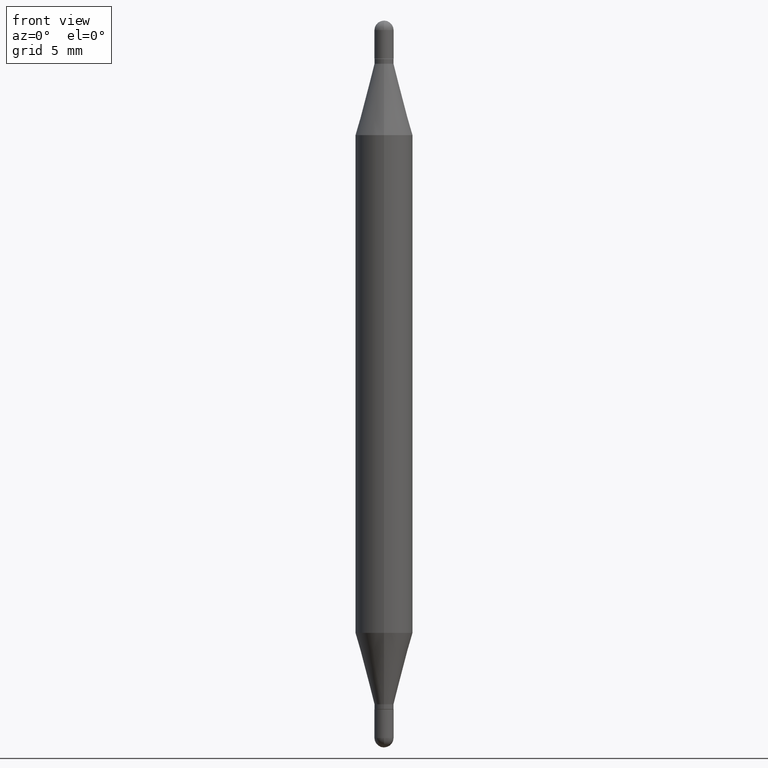
[diagram: clean part render]
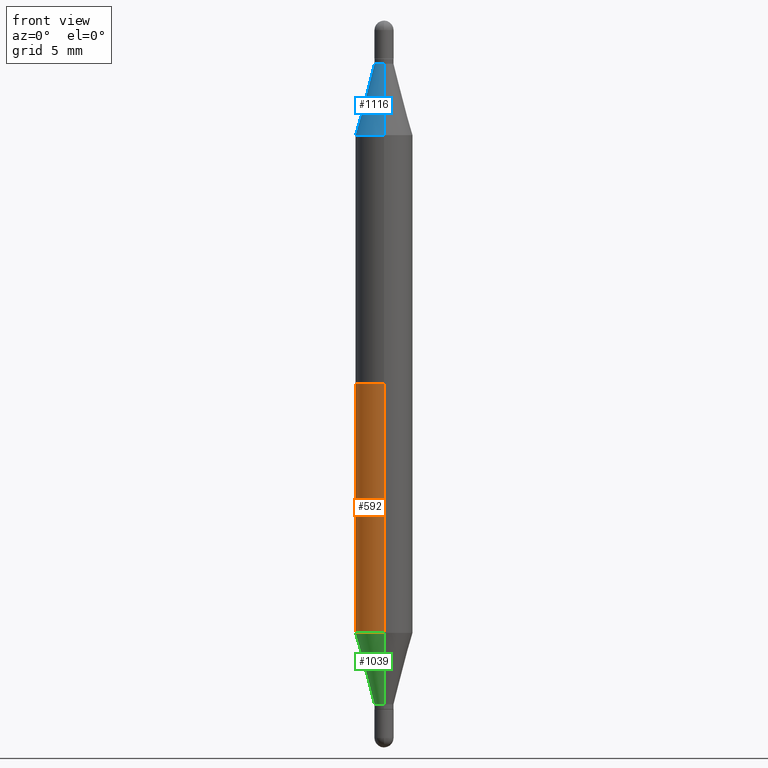
[diagram: same view with three faces highlighted in distinct colors, each labeled with its STEP entity id]
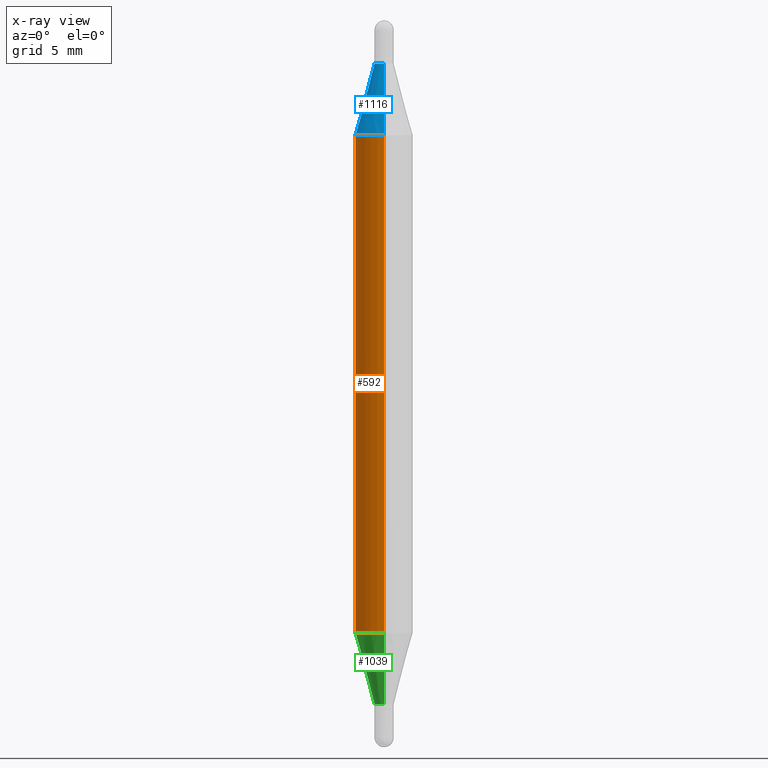
[diagram: x-ray of the same camera — body ghosted, the three highlighted faces saturated]
A machine part, front view with three faces highlighted in distinct colors.
The next image is the same camera in x-ray (body ghosted, the three faces saturated) — at least one of them is partly hidden behind the body in this view.
Their STEP definitions:

[orange] entity #592 — the highlighted cylindrical surface (edge-blend (fillet) strip) has radius 1.4999 mm, axis along (-0, -0, -1).
#17 = VECTOR ( 'NONE', #751, 39.37007874015748143 ) ;
#41 = VERTEX_POINT ( 'NONE', #969 ) ;
#54 = VERTEX_POINT ( 'NONE', #279 ) ;
#78 = AXIS2_PLACEMENT_3D ( 'NONE', #487, #327, #235 ) ;
#194 = CARTESIAN_POINT ( 'NONE',  ( -4.123439461173430699E-16, -0.05905000000000081711, -0.2358561992778356042 ) ) ;
#197 = DIRECTION ( 'NONE',  ( -2.452517539544845457E-29, -3.489708654337918810E-15, -1.000000000000000000 ) ) ;
#233 = CARTESIAN_POINT ( 'NONE',  ( 3.090770025373766700E-29, -4.387396575570313386E-15, -1.260243800722164131 ) ) ;
#235 = DIRECTION ( 'NONE',  ( -6.982962677686265922E-15, -1.000000000000000000, 4.626330217890367758E-15 ) ) ;
#273 = DIRECTION ( 'NONE',  ( 2.452517539544845457E-29, 3.489708654337919205E-15, 1.000000000000000000 ) ) ;
#279 = CARTESIAN_POINT ( 'NONE',  ( -4.123439461173431192E-16, -0.05905000000000439758, -1.260243800722163909 ) ) ;
#282 = LINE ( 'NONE', #619, #1031 ) ;
#327 = DIRECTION ( 'NONE',  ( -2.452517539544845457E-29, -3.489708654337919205E-15, -1.000000000000000000 ) ) ;
#342 = CARTESIAN_POINT ( 'NONE',  ( 4.051124067684273079E-16, 0.05904999999999561988, -1.260243800722164353 ) ) ;
#357 = ORIENTED_EDGE ( 'NONE', *, *, #834, .T. ) ;
#419 = CYLINDRICAL_SURFACE ( 'NONE', #78, 0.05905000000000001914 ) ;
#456 = AXIS2_PLACEMENT_3D ( 'NONE', #233, #568, #848 ) ;
#487 = CARTESIAN_POINT ( 'NONE',  ( 0.000000000000000000, -5.214728217544379106E-15, -1.496099999999999985 ) ) ;
#490 = EDGE_CURVE ( 'NONE', #656, #54, #282, .T. ) ;
#505 = FACE_OUTER_BOUND ( 'NONE', #524, .T. ) ;
#523 = EDGE_CURVE ( 'NONE', #41, #916, #758, .T. ) ;
#524 = EDGE_LOOP ( 'NONE', ( #1053, #621, #357, #526 ) ) ;
#526 = ORIENTED_EDGE ( 'NONE', *, *, #490, .F. ) ;
#568 = DIRECTION ( 'NONE',  ( -2.452517539544845457E-29, 3.481387151483054632E-15, 1.000000000000000000 ) ) ;
#592 = ADVANCED_FACE ( 'NONE', ( #505 ), #419, .T. ) ;
#619 = CARTESIAN_POINT ( 'NONE',  ( -4.123439461173741313E-16, -0.05905000000000523025, -1.496099999999999541 ) ) ;
#620 = AXIS2_PLACEMENT_3D ( 'NONE', #953, #273, #889 ) ;
#621 = ORIENTED_EDGE ( 'NONE', *, *, #523, .T. ) ;
#656 = VERTEX_POINT ( 'NONE', #194 ) ;
#708 = EDGE_CURVE ( 'NONE', #41, #656, #1118, .T. ) ;
#751 = DIRECTION ( 'NONE',  ( -2.452517539544845457E-29, -3.489708654337918810E-15, -1.000000000000000000 ) ) ;
#758 = LINE ( 'NONE', #1020, #17 ) ;
#834 = EDGE_CURVE ( 'NONE', #916, #54, #1051, .T. ) ;
#848 = DIRECTION ( 'NONE',  ( -6.982962677686265922E-15, -1.000000000000000000, 4.626330217890369336E-15 ) ) ;
#889 = DIRECTION ( 'NONE',  ( -6.982962677686265922E-15, -1.000000000000000000, 3.469747663417777002E-15 ) ) ;
#916 = VERTEX_POINT ( 'NONE', #342 ) ;
#953 = CARTESIAN_POINT ( 'NONE',  ( 3.090770025373766700E-29, -8.168445195885310899E-16, -0.2358561992778358263 ) ) ;
#969 = CARTESIAN_POINT ( 'NONE',  ( 4.051124067684398803E-16, 0.05904999999999917953, -0.2358561992778360206 ) ) ;
#1020 = CARTESIAN_POINT ( 'NONE',  ( 4.051124067684090161E-16, 0.05904999999999480109, -1.496100000000000207 ) ) ;
#1031 = VECTOR ( 'NONE', #197, 39.37007874015748143 ) ;
#1051 = CIRCLE ( 'NONE', #456, 0.05905000000000000526 ) ;
#1053 = ORIENTED_EDGE ( 'NONE', *, *, #708, .F. ) ;
#1118 = CIRCLE ( 'NONE', #620, 0.05905000000000000526 ) ;

[blue] entity #1116 — the highlighted conical surface has half-angle 15 deg.
#82 = VECTOR ( 'NONE', #258, 39.37007874015748143 ) ;
#124 = AXIS2_PLACEMENT_3D ( 'NONE', #675, #411, #151 ) ;
#151 = DIRECTION ( 'NONE',  ( -6.982962677686265922E-15, -1.000000000000000000, 3.466812174700886453E-15 ) ) ;
#177 = EDGE_CURVE ( 'NONE', #265, #215, #391, .T. ) ;
#186 = CARTESIAN_POINT ( 'NONE',  ( 4.051124067684398803E-16, 0.05904999999999917953, -0.2358561992778360206 ) ) ;
#204 = CARTESIAN_POINT ( 'NONE',  ( -1.375643647503831486E-16, -0.01970000000000004733, -0.08899999999999999578 ) ) ;
#215 = VERTEX_POINT ( 'NONE', #204 ) ;
#229 = CARTESIAN_POINT ( 'NONE',  ( 3.090770025373766700E-29, -8.168445195885310899E-16, -0.2358561992778358263 ) ) ;
#258 = DIRECTION ( 'NONE',  ( -1.807323732225330534E-15, -0.2588190451025250138, -0.9659258262890670910 ) ) ;
#261 = EDGE_CURVE ( 'NONE', #686, #514, #591, .T. ) ;
#265 = VERTEX_POINT ( 'NONE', #450 ) ;
#280 = LINE ( 'NONE', #973, #82 ) ;
#313 = DIRECTION ( 'NONE',  ( -6.982962677686265922E-15, -1.000000000000000000, 3.469747663417777002E-15 ) ) ;
#391 = CIRCLE ( 'NONE', #623, 0.01969999999999974549 ) ;
#406 = CARTESIAN_POINT ( 'NONE',  ( -4.123439461173430699E-16, -0.05905000000000081711, -0.2358561992778356042 ) ) ;
#411 = DIRECTION ( 'NONE',  ( -2.452517539544845457E-29, -3.489708654337919205E-15, -1.000000000000000000 ) ) ;
#414 = VECTOR ( 'NONE', #1111, 39.37007874015748143 ) ;
#450 = CARTESIAN_POINT ( 'NONE',  ( 1.351518105561320303E-16, 0.01969999999999944365, -0.08900000000000013456 ) ) ;
#512 = EDGE_CURVE ( 'NONE', #265, #686, #763, .T. ) ;
#514 = VERTEX_POINT ( 'NONE', #406 ) ;
#546 = ORIENTED_EDGE ( 'NONE', *, *, #261, .T. ) ;
#558 = DIRECTION ( 'NONE',  ( -6.982962677686265922E-15, -1.000000000000000000, 3.466812174700886453E-15 ) ) ;
#560 = EDGE_LOOP ( 'NONE', ( #951, #798, #546, #772 ) ) ;
#591 = CIRCLE ( 'NONE', #645, 0.05905000000000000526 ) ;
#623 = AXIS2_PLACEMENT_3D ( 'NONE', #831, #817, #558 ) ;
#645 = AXIS2_PLACEMENT_3D ( 'NONE', #229, #731, #313 ) ;
#675 = CARTESIAN_POINT ( 'NONE',  ( 3.450937429893551947E-29, -3.043591700254928596E-16, -0.08900000000000006517 ) ) ;
#686 = VERTEX_POINT ( 'NONE', #186 ) ;
#731 = DIRECTION ( 'NONE',  ( 2.452517539544845457E-29, 3.489708654337919205E-15, 1.000000000000000000 ) ) ;
#763 = LINE ( 'NONE', #1035, #414 ) ;
#765 = EDGE_CURVE ( 'NONE', #215, #514, #280, .T. ) ;
#767 = CONICAL_SURFACE ( 'NONE', #124, 0.01969999999999974549, 0.2617993877991502960 ) ;
#772 = ORIENTED_EDGE ( 'NONE', *, *, #765, .F. ) ;
#798 = ORIENTED_EDGE ( 'NONE', *, *, #512, .T. ) ;
#817 = DIRECTION ( 'NONE',  ( 2.452517539544845457E-29, 3.489708654337919205E-15, 1.000000000000000000 ) ) ;
#831 = CARTESIAN_POINT ( 'NONE',  ( 3.450937429893551947E-29, -3.043591700254928596E-16, -0.08900000000000006517 ) ) ;
#927 = FACE_OUTER_BOUND ( 'NONE', #560, .T. ) ;
#951 = ORIENTED_EDGE ( 'NONE', *, *, #177, .F. ) ;
#973 = CARTESIAN_POINT ( 'NONE',  ( -1.375643647503831486E-16, -0.01970000000000004733, -0.08899999999999999578 ) ) ;
#1035 = CARTESIAN_POINT ( 'NONE',  ( 1.351518105561319317E-16, 0.01969999999999944365, -0.08900000000000013456 ) ) ;
#1111 = DIRECTION ( 'NONE',  ( 1.775627540710965497E-15, 0.2588190451025182415, -0.9659258262890689783 ) ) ;
#1116 = ADVANCED_FACE ( 'NONE', ( #927 ), #767, .T. ) ;

[green] entity #1039 — the highlighted conical surface has half-angle 15 deg.
#54 = VERTEX_POINT ( 'NONE', #279 ) ;
#66 = CARTESIAN_POINT ( 'NONE',  ( 3.450937429893551947E-29, -4.898659860851804742E-15, -1.407099999999999795 ) ) ;
#67 = CARTESIAN_POINT ( 'NONE',  ( -1.375643647503831486E-16, -0.01970000000000464435, -1.407099999999999795 ) ) ;
#72 = ORIENTED_EDGE ( 'NONE', *, *, #1006, .F. ) ;
#84 = CARTESIAN_POINT ( 'NONE',  ( 3.450937429893551947E-29, -4.898659860851804742E-15, -1.407099999999999795 ) ) ;
#107 = DIRECTION ( 'NONE',  ( -6.982962677686265922E-15, -1.000000000000000000, 0.000000000000000000 ) ) ;
#130 = DIRECTION ( 'NONE',  ( -6.982962677686265922E-15, -1.000000000000000000, 0.000000000000000000 ) ) ;
#149 = VECTOR ( 'NONE', #915, 39.37007874015748143 ) ;
#183 = CONICAL_SURFACE ( 'NONE', #1106, 0.01969999999999974549, 0.2617993877991502960 ) ;
#195 = EDGE_CURVE ( 'NONE', #408, #54, #458, .T. ) ;
#233 = CARTESIAN_POINT ( 'NONE',  ( 3.090770025373766700E-29, -4.387396575570313386E-15, -1.260243800722164131 ) ) ;
#266 = CIRCLE ( 'NONE', #907, 0.01969999999999974549 ) ;
#279 = CARTESIAN_POINT ( 'NONE',  ( -4.123439461173431192E-16, -0.05905000000000439758, -1.260243800722163909 ) ) ;
#323 = ORIENTED_EDGE ( 'NONE', *, *, #834, .F. ) ;
#342 = CARTESIAN_POINT ( 'NONE',  ( 4.051124067684273079E-16, 0.05904999999999561988, -1.260243800722164353 ) ) ;
#379 = EDGE_CURVE ( 'NONE', #888, #408, #266, .T. ) ;
#383 = ORIENTED_EDGE ( 'NONE', *, *, #379, .T. ) ;
#404 = CARTESIAN_POINT ( 'NONE',  ( 1.399769189447726628E-16, 0.01969999999999484663, -1.407099999999999795 ) ) ;
#408 = VERTEX_POINT ( 'NONE', #955 ) ;
#456 = AXIS2_PLACEMENT_3D ( 'NONE', #233, #568, #848 ) ;
#458 = LINE ( 'NONE', #67, #149 ) ;
#568 = DIRECTION ( 'NONE',  ( -2.452517539544845457E-29, 3.481387151483054632E-15, 1.000000000000000000 ) ) ;
#574 = EDGE_LOOP ( 'NONE', ( #72, #383, #1081, #323 ) ) ;
#766 = DIRECTION ( 'NONE',  ( -2.452517539544845457E-29, 3.481387151483054632E-15, 1.000000000000000000 ) ) ;
#830 = FACE_OUTER_BOUND ( 'NONE', #574, .T. ) ;
#834 = EDGE_CURVE ( 'NONE', #916, #54, #1051, .T. ) ;
#848 = DIRECTION ( 'NONE',  ( -6.982962677686265922E-15, -1.000000000000000000, 4.626330217890369336E-15 ) ) ;
#888 = VERTEX_POINT ( 'NONE', #404 ) ;
#904 = DIRECTION ( 'NONE',  ( -2.452517539544845457E-29, 3.481387151483054632E-15, 1.000000000000000000 ) ) ;
#907 = AXIS2_PLACEMENT_3D ( 'NONE', #84, #766, #107 ) ;
#915 = DIRECTION ( 'NONE',  ( -1.807323732225330534E-15, -0.2588190451025182415, 0.9659258262890689783 ) ) ;
#916 = VERTEX_POINT ( 'NONE', #342 ) ;
#928 = VECTOR ( 'NONE', #1000, 39.37007874015748143 ) ;
#955 = CARTESIAN_POINT ( 'NONE',  ( -1.375643647503831486E-16, -0.01970000000000464435, -1.407099999999999795 ) ) ;
#1000 = DIRECTION ( 'NONE',  ( 1.839019923739600710E-15, 0.2588190451025250138, 0.9659258262890670910 ) ) ;
#1006 = EDGE_CURVE ( 'NONE', #888, #916, #1074, .T. ) ;
#1007 = CARTESIAN_POINT ( 'NONE',  ( 1.399769189447724162E-16, 0.01969999999999484663, -1.407099999999999795 ) ) ;
#1039 = ADVANCED_FACE ( 'NONE', ( #830 ), #183, .T. ) ;
#1051 = CIRCLE ( 'NONE', #456, 0.05905000000000000526 ) ;
#1074 = LINE ( 'NONE', #1007, #928 ) ;
#1081 = ORIENTED_EDGE ( 'NONE', *, *, #195, .T. ) ;
#1106 = AXIS2_PLACEMENT_3D ( 'NONE', #66, #904, #130 ) ;